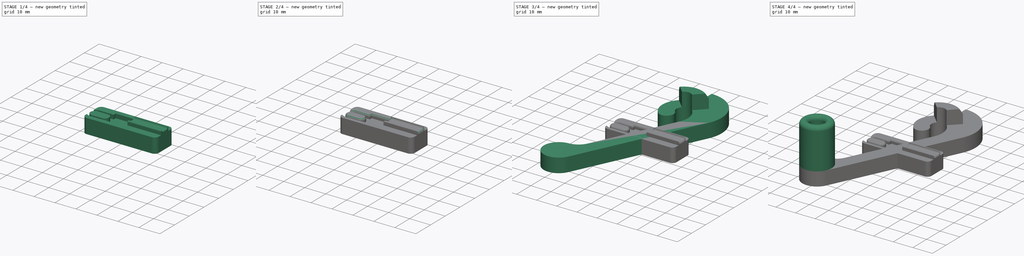
[diagram: build sequence overview — one tinted view per stage of 4, left to right]
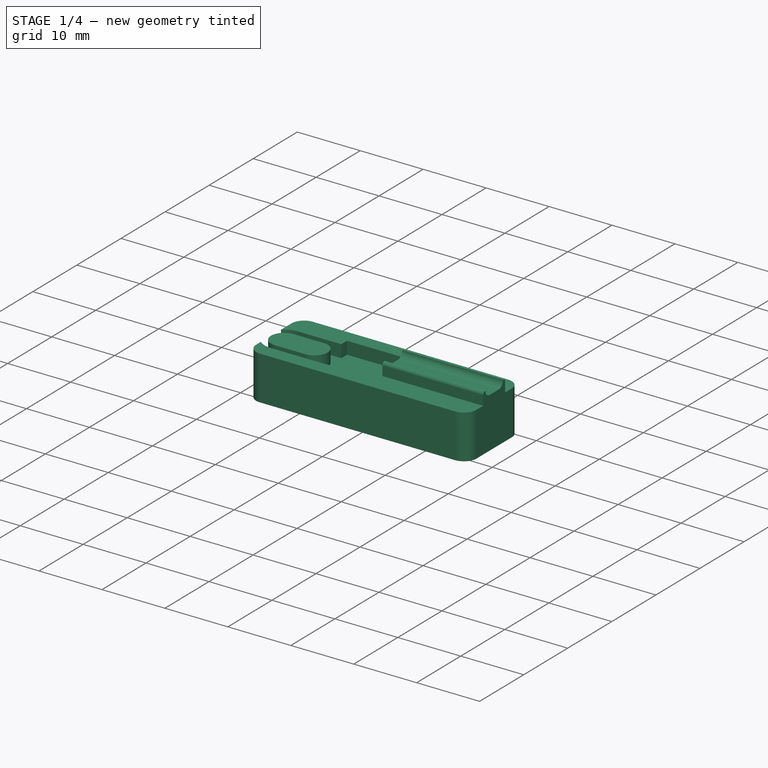
[diagram: stage 1 of 4 — iso view after this stage's code; geometry added in this stage tinted green]
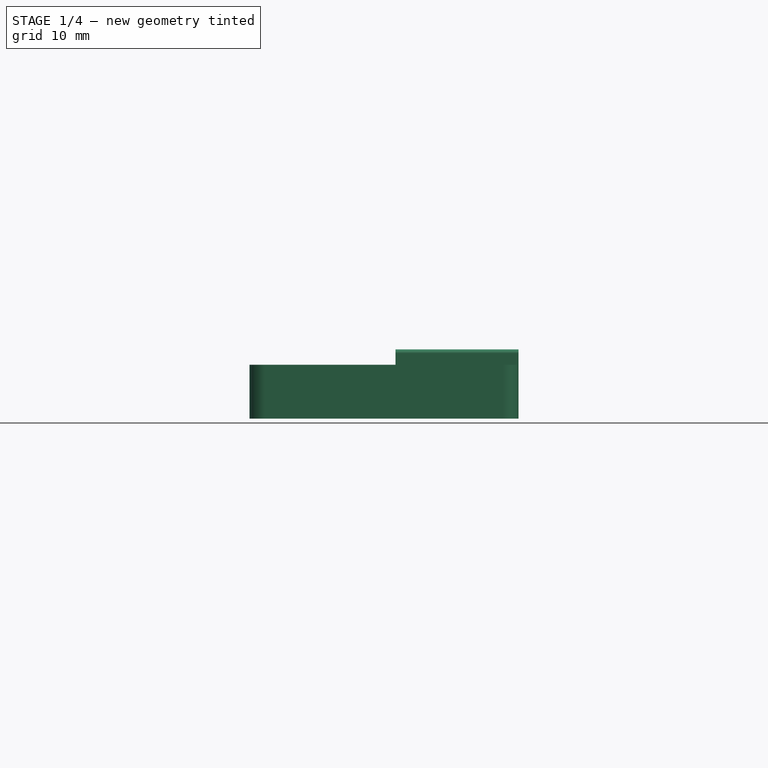
[diagram: stage 1 of 4 — front view after this stage's code; geometry added in this stage tinted green]
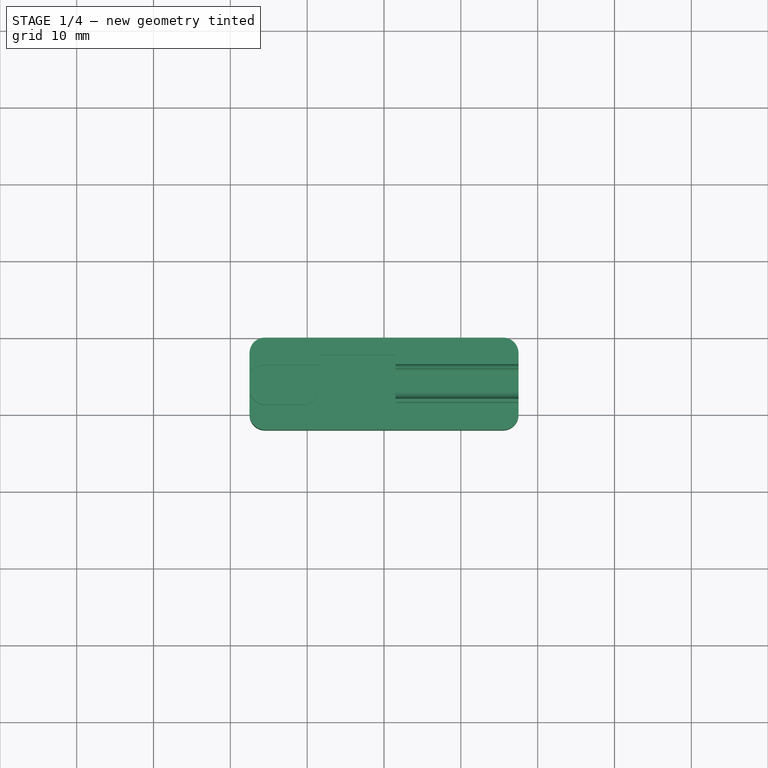
[diagram: stage 1 of 4 — top view after this stage's code; geometry added in this stage tinted green]
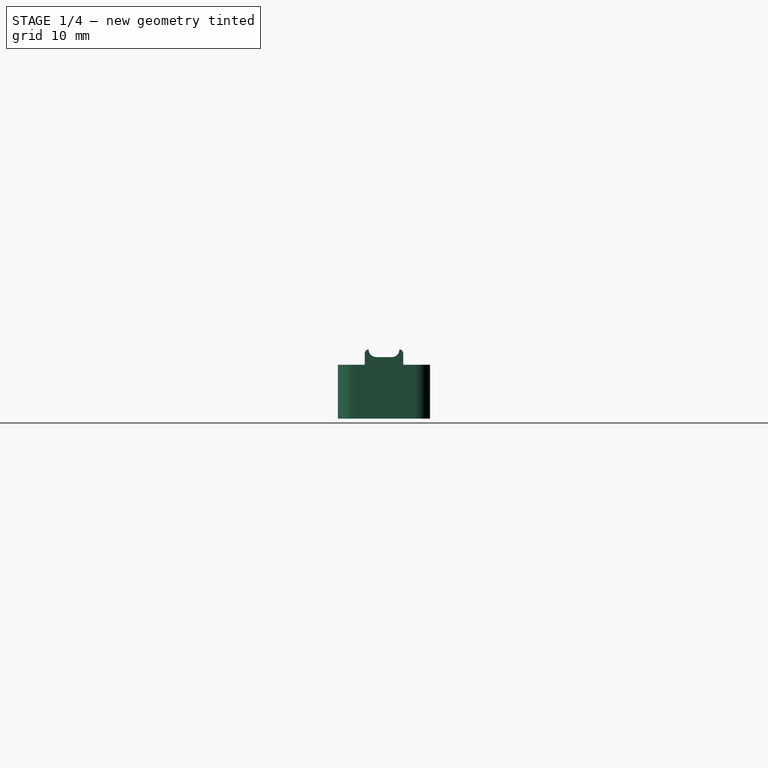
[diagram: stage 1 of 4 — right view after this stage's code; geometry added in this stage tinted green]
FCSTD DOCUMENT  (FreeCAD 0.18R16110 (Git))
Label: WireRackSpoolHangerR
License: All rights reserved
LicenseURL: http://en.wikipedia.org/wiki/All_rights_reserved
objects: Sketcher::SketchObject×7, PartDesign::Pad×5, PartDesign::Fillet×3, PartDesign::Pocket×2, PartDesign::Body×2, PartDesign::Revolution×1
note: 28 computed .brp shape members not serialized (recipe doc carries the construction recipe); baked Part::Feature solids carry a one-line shape summary decoded from their .brp

FEATURE [PartDesign::Body] Body
  Group = -> [Sketch,Pad,Revolution,Sketch001,Pad001,Sketch002,Pocket,Fillet]
  Origin = -> Origin
  Tip = -> Fillet
FEATURE [Sketcher::SketchObject] Sketch003
  MapMode = 5
  Support = -> [XY_Plane001]
  sketch-geometry (12):
    g0: Circle [constr] CenterX=0 CenterY=0 CenterZ=0 NormalX=0 NormalY=0 NormalZ=1 AngleXU=0 Radius=10.5
    g1: ArcOfCircle CenterX=-15.5 CenterY=-22 CenterZ=0 NormalX=0 NormalY=0 NormalZ=1 AngleXU=0 Radius=2 StartAngle=1.5708 EndAngle=3.14159
    g2: ArcOfCircle CenterX=15.5 CenterY=-22 CenterZ=0 NormalX=0 NormalY=0 NormalZ=1 AngleXU=0 Radius=2 StartAngle=0 EndAngle=1.5708
    g3: ArcOfCircle CenterX=15.5 CenterY=-30 CenterZ=0 NormalX=0 NormalY=0 NormalZ=1 AngleXU=0 Radius=2 StartAngle=4.71239 EndAngle=6.28319
    g4: ArcOfCircle CenterX=-15.5 CenterY=-30 CenterZ=0 NormalX=0 NormalY=0 NormalZ=1 AngleXU=0 Radius=2 StartAngle=3.14159 EndAngle=4.71239
    g5: LineSegment StartX=-17.5 StartY=-30 StartZ=0 EndX=-17.5 EndY=-22 EndZ=0
    g6: LineSegment StartX=-15.5 StartY=-20 StartZ=0 EndX=15.5 EndY=-20 EndZ=0
    g7: LineSegment StartX=-15.5 StartY=-32 StartZ=0 EndX=15.5 EndY=-32 EndZ=0
    g8: LineSegment StartX=17.5 StartY=-30 StartZ=0 EndX=17.5 EndY=-22 EndZ=0
    g9: Circle [constr] CenterX=0 CenterY=0 CenterZ=0 NormalX=0 NormalY=0 NormalZ=1 AngleXU=0 Radius=17.5
    g10: LineSegment [constr] StartX=0 StartY=10.5 StartZ=0 EndX=0 EndY=17.5 EndZ=0
    g11: GeomPoint X=0 Y=-20 Z=0
  constraints (29):
    c: Coincident(g0,g-1)
    c: Radius(g0) = 10.5
    c: Vertical(g8)
    c: Vertical(g5)
    c: Horizontal(g6)
    c: Horizontal(g7)
    c: Tangent(g7,g3) = -1.5708
    c: Tangent(g8,g3) = -1.5708
    c: Tangent(g8,g2) = -1.5708
    c: Tangent(g6,g2) = 1.5708
    c: Tangent(g5,g1) = 1.5708
    c: Tangent(g6,g1) = 1.5708
    c: Tangent(g5,g4) = 1.5708
    c: Tangent(g7,g4) = -1.5708
    c: Equal(g4,g1)
    c: Equal(g1,g2)
    c: Equal(g2,g3)
    c: DistanceY(g5,g5) = 8
    c: Radius(g4) = 2
    c: DistanceX(g4,g3) = 35
    c: Coincident(g9,g-1)
    c: PointOnObject(g10,g0)
    c: PointOnObject(g10,g9)
    c: Vertical(g10)
    c: PointOnObject(g10,g-2)
    c: DistanceY(g10,g10) = 7
    c: DistanceY(g1,g-1) = 20
    c: Symmetric(g1,g2,g11)
    c: DistanceX(g11,g-1) = 0
FEATURE [PartDesign::Pad] Pad002  label="ClipHolderBase"
  Length = 7
  Length2 = 100
  Profile = -> Sketch003
  Type = 0
FEATURE [Sketcher::SketchObject] Sketch004
  MapMode = 5
  Placement = pos=(0,0,7) rot=(0,0,1;0rad)
  Support = -> [Pad002]
  sketch-geometry (24):
    g0: GeomPoint X=0 Y=-26 Z=0
    g1: ArcOfCircle CenterX=-15.4 CenterY=-26.65 CenterZ=0 NormalX=0 NormalY=0 NormalZ=1 AngleXU=0 Radius=2.1 StartAngle=1.5708 EndAngle=4.71239
    g2: ArcOfCircle CenterX=-15.4 CenterY=-26.65 CenterZ=0 NormalX=0 NormalY=0 NormalZ=1 AngleXU=0 Radius=3.1 StartAngle=1.5708 EndAngle=4.71239
    g3: LineSegment [constr] StartX=-15.4 StartY=-26.65 StartZ=0 EndX=-18.5 EndY=-26.65 EndZ=0
    g4: GeomPoint X=-17.5 Y=-26.65 Z=0
    g5: LineSegment [constr] StartX=-15.4 StartY=-24.55 StartZ=0 EndX=-15.4 EndY=-28.75 EndZ=0
    g6: LineSegment StartX=-15.4 StartY=-23.55 StartZ=0 EndX=-8.5 EndY=-23.55 EndZ=0
    g7: LineSegment StartX=-15.4 StartY=-29.75 StartZ=0 EndX=1.5 EndY=-29.75 EndZ=0
    g8: LineSegment StartX=-15.4 StartY=-24.55 StartZ=0 EndX=-10.6 EndY=-24.55 EndZ=0
    g9: LineSegment StartX=-15.4 StartY=-28.75 StartZ=0 EndX=-10.6 EndY=-28.75 EndZ=0
    g10: LineSegment [constr] StartX=-10.6 StartY=-28.75 StartZ=0 EndX=-10.6 EndY=-24.55 EndZ=0
    g11: ArcOfCircle CenterX=-10.6 CenterY=-26.65 CenterZ=0 NormalX=0 NormalY=0 NormalZ=1 AngleXU=0 Radius=2.1 StartAngle=4.71239 EndAngle=7.85398
    g12: LineSegment StartX=-8.5 StartY=-23.55 StartZ=0 EndX=-8.5 EndY=-22.25 EndZ=0
    g13: LineSegment StartX=-8.5 StartY=-22.25 StartZ=0 EndX=1.5 EndY=-22.25 EndZ=0
    g14: GeomPoint X=-8.5 Y=-26 Z=0
    g15: GeomPoint X=-8.5 Y=-29.75 Z=0
    g16: LineSegment [constr] StartX=0 StartY=-26 StartZ=0 EndX=-8.5 EndY=-26 EndZ=0
    g17: GeomPoint X=-8.5 Y=-26.65 Z=0
    g18: LineSegment StartX=3.9 StartY=-23.55 StartZ=0 EndX=1.5 EndY=-23.55 EndZ=0
    g19: LineSegment StartX=3.9 StartY=-28.75 StartZ=0 EndX=1.5 EndY=-28.75 EndZ=0
    g20: ArcOfCircle CenterX=3.9 CenterY=-26.15 CenterZ=0 NormalX=0 NormalY=0 NormalZ=1 AngleXU=0 Radius=2.6 StartAngle=4.71239 EndAngle=7.85398
    g21: LineSegment [constr] StartX=3.9 StartY=-26.15 StartZ=0 EndX=6.5 EndY=-26.15 EndZ=0
    g22: LineSegment StartX=1.5 StartY=-22.25 StartZ=0 EndX=1.5 EndY=-23.55 EndZ=0
    g23: LineSegment StartX=1.5 StartY=-28.75 StartZ=0 EndX=1.5 EndY=-29.75 EndZ=0
  constraints (66):
    c: PointOnObject(g0,g-2)
    c: DistanceY(g0,g-1) = 26
    c: Coincident(g2,g1)
    c: Coincident(g3,g1)
    c: PointOnObject(g3,g2)
    c: Horizontal(g3)
    c: PointOnObject(g4,g1)
    c: PointOnObject(g4,g3)
    c: Coincident(g5,g1)
    c: Coincident(g5,g1)
    c: Vertical(g5)
    c: PointOnObject(g1,g5)
    c: PointOnObject(g2,g5)
    c: PointOnObject(g2,g5)
    c: Radius(g2) = 3.1
    c: Radius(g1) = 2.1
    c: DistanceX(g4,g0) = 17.5
    c: Coincident(g6,g2)
    c: Horizontal(g6)
    c: Coincident(g7,g2)
    c: Horizontal(g7)
    c: Coincident(g8,g1)
    c: Horizontal(g8)
    c: Coincident(g9,g1)
    c: Horizontal(g9)
    c: Coincident(g10,g9)
    c: Coincident(g10,g8)
    c: Vertical(g10)
    c: PointOnObject(g11,g10)
    c: Coincident(g11,g8)
    c: Coincident(g11,g9)
    c: Coincident(g12,g6)
    c: Coincident(g13,g12)
    c: Horizontal(g13)
    c: Vertical(g12)
    c: DistanceX(g3,g12) = 10
    c: DistanceY(g2,g12) = 7.5
    c: PointOnObject(g15,g7)
    c: PointOnObject(g15,g12)
    c: Symmetric(g15,g12,g14)
    c: Coincident(g16,g0)
    c: Coincident(g16,g14)
    c: Horizontal(g16)
    c: PointOnObject(g17,g11)
    c: PointOnObject(g17,g3)
    c: PointOnObject(g17,g12)
    c: Horizontal(g18)
    c: Horizontal(g19)
    c: Tangent(g20,g19) = 1.5708
    c: Tangent(g20,g18) = -1.5708
    c: Coincident(g21,g20)
    c: PointOnObject(g21,g20)
    c: Horizontal(g21)
    c: DistanceX(g3,g21) = 25
    c: PointOnObject(g19,g9)
    c: PointOnObject(g18,g6)
    c: DistanceX(g18,g21) = 5
    c: Coincident(g22,g13)
    c: Coincident(g22,g18)
    c: Coincident(g23,g19)
    c: Vertical(g23)
    c: Vertical(g22)
    c: Coincident(g23,g7)
    c: PointOnObject(g18,g23)
    c: DistanceX(g0,g21) = 6.5
    c: DistanceX(g0,g18) = 1.5
FEATURE [Sketcher::SketchObject] Sketch005
  MapMode = 5
  Placement = pos=(17.5,0,0) rot=(0.57735,0.57735,0.57735;2.0944rad)
  Support = -> [Pad002]
  sketch-geometry (12):
    g0: ArcOfCircle CenterX=-25 CenterY=9 CenterZ=0 NormalX=0 NormalY=0 NormalZ=1 AngleXU=0 Radius=1 StartAngle=4.71239 EndAngle=6.28319
    g1: ArcOfCircle CenterX=-27 CenterY=9 CenterZ=0 NormalX=0 NormalY=0 NormalZ=1 AngleXU=0 Radius=1 StartAngle=3.14159 EndAngle=4.71239
    g2: LineSegment StartX=-27 StartY=8 StartZ=0 EndX=-25 EndY=8 EndZ=0
    g3: ArcOfCircle CenterX=-28 CenterY=8.5 CenterZ=0 NormalX=0 NormalY=0 NormalZ=1 AngleXU=0 Radius=0.5 StartAngle=1.5708 EndAngle=3.14159
    g4: ArcOfCircle CenterX=-24 CenterY=8.5 CenterZ=0 NormalX=0 NormalY=0 NormalZ=1 AngleXU=0 Radius=0.5 StartAngle=-9e-16 EndAngle=1.5708
    g5: LineSegment StartX=-28.5 StartY=8.5 StartZ=0 EndX=-28.5 EndY=7 EndZ=0
    g6: LineSegment StartX=-23.5 StartY=8.5 StartZ=0 EndX=-23.5 EndY=7 EndZ=0
    g7: LineSegment StartX=-28.5 StartY=7 StartZ=0 EndX=-23.5 EndY=7 EndZ=0
    g8: LineSegment [constr] StartX=-27 StartY=9 StartZ=0 EndX=-28 EndY=9 EndZ=0
    g9: GeomPoint X=-26 Y=7 Z=0
    g10: LineSegment [constr] StartX=-28 StartY=8.5 StartZ=0 EndX=-28 EndY=9 EndZ=0
    g11: LineSegment [constr] StartX=-24 StartY=8.5 StartZ=0 EndX=-24 EndY=9 EndZ=0
  constraints (32):
    c: Horizontal(g2)
    c: Coincident(g3,g1)
    c: Coincident(g4,g0)
    c: Tangent(g2,g1) = -1.5708
    c: Tangent(g0,g2) = -1.5708
    c: Vertical(g5)
    c: Vertical(g6)
    c: Coincident(g7,g5)
    c: Coincident(g7,g6)
    c: Horizontal(g7)
    c: Radius(g0) = 1
    c: Tangent(g5,g3) = -1.5708
    c: Tangent(g6,g4) = 1.5708
    c: DistanceY(g-1,g6) = 7
    c: Coincident(g8,g1)
    c: Coincident(g8,g1)
    c: Horizontal(g8)
    c: PointOnObject(g0,g8)
    c: Symmetric(g5,g6,g9)
    c: DistanceX(g9,g-1) = 26
    c: DistanceX(g7,g7) = 5
    c: Coincident(g10,g3)
    c: Coincident(g10,g1)
    c: Vertical(g10)
    c: Coincident(g11,g4)
    c: Coincident(g11,g0)
    c: Vertical(g11)
    c: DistanceX(g1,g0) = 4
    c: Equal(g1,g0)
    c: Equal(g3,g4)
    c: Radius(g4) = 0.5
    c: DistanceY(g6,g0) = 1
FEATURE [PartDesign::Pad] Pad003  label="WireChannel"
  BaseFeature = -> Pad002
  Length = 16
  Length2 = 100
  Profile = -> Sketch005
  Reversed = true
  Type = 0
FEATURE [PartDesign::Pocket] Pocket001  label="ClipCutout"
  BaseFeature = -> Pad003
  Length = 2
  Length2 = 100
  Profile = -> Sketch004
  Type = 0
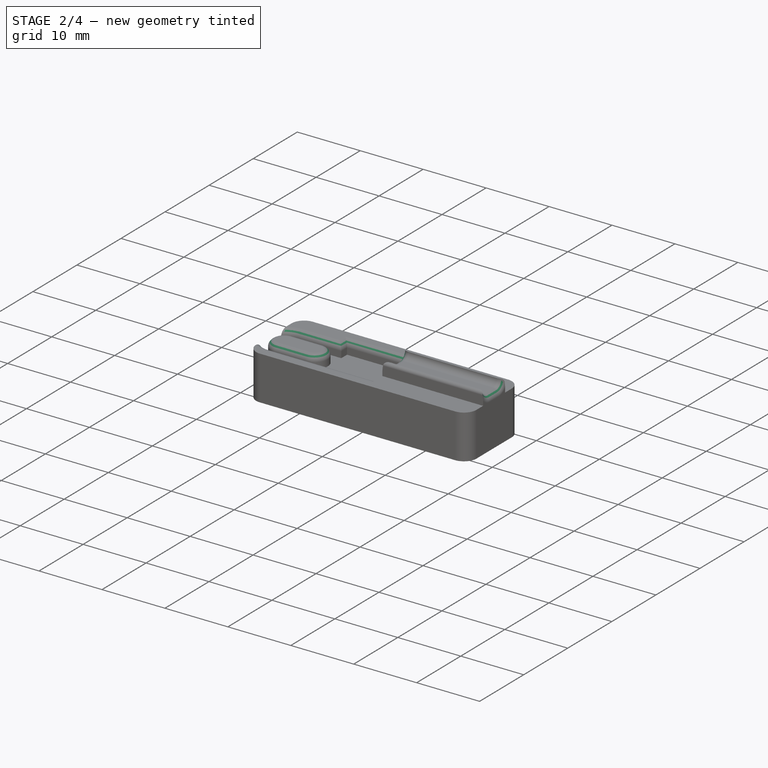
[diagram: stage 2 of 4 — iso view after this stage's code; geometry added in this stage tinted green]
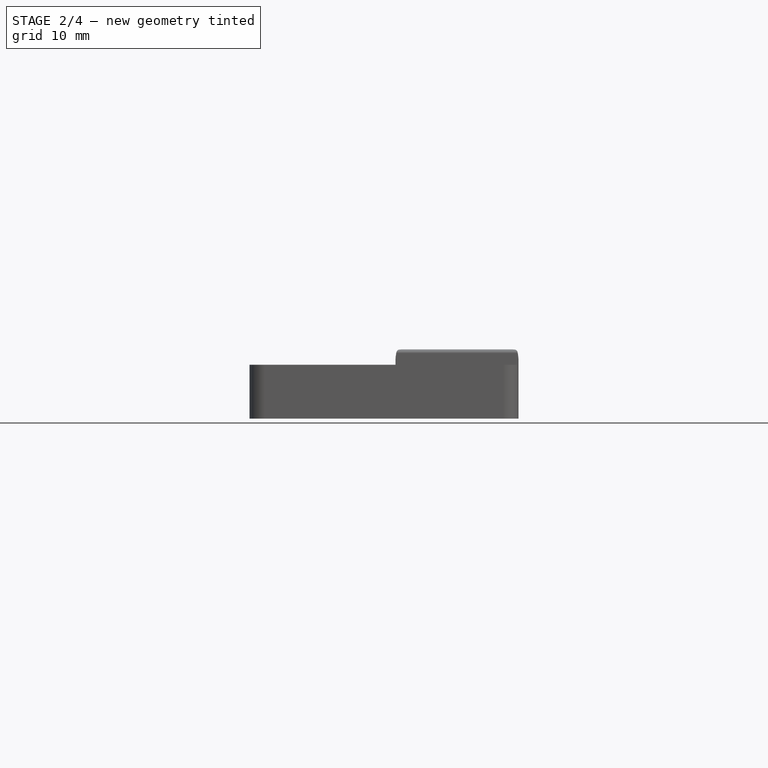
[diagram: stage 2 of 4 — front view after this stage's code; geometry added in this stage tinted green]
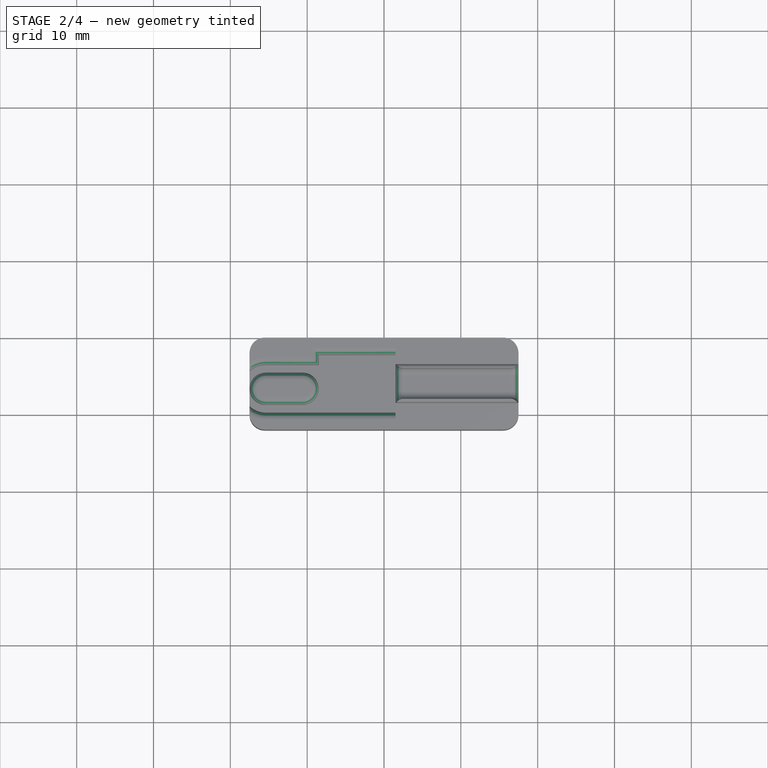
[diagram: stage 2 of 4 — top view after this stage's code; geometry added in this stage tinted green]
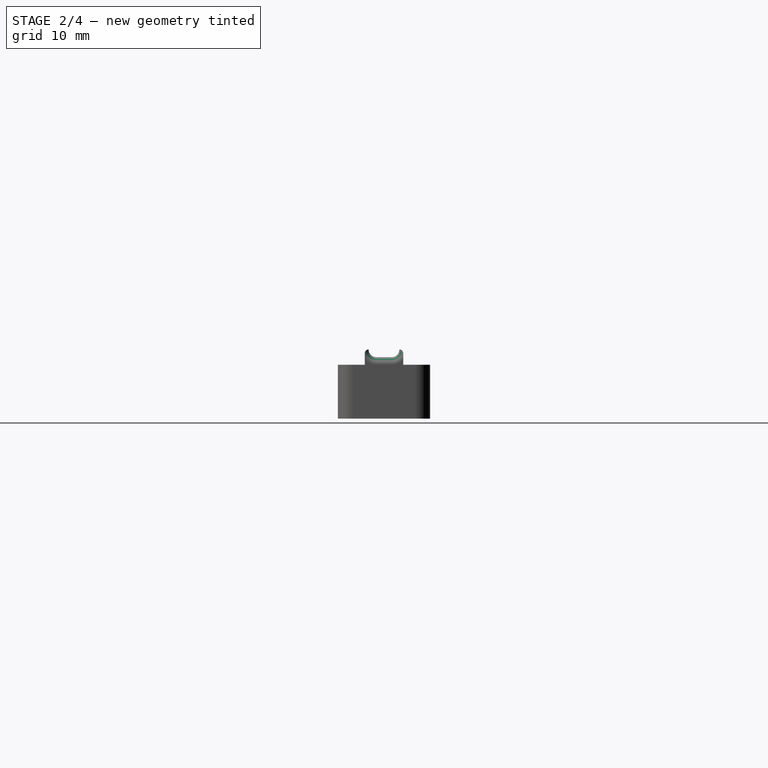
[diagram: stage 2 of 4 — right view after this stage's code; geometry added in this stage tinted green]
FEATURE [Sketcher::SketchObject] Sketch006
  MapMode = 5
  Placement = pos=(0,0,7) rot=(0,0,1;0rad)
  Support = -> [Pocket001]
  sketch-geometry (4):
    g0: LineSegment StartX=11.5 StartY=-21 StartZ=0 EndX=1.5 EndY=-21 EndZ=0
    g1: LineSegment StartX=1.5 StartY=-21 StartZ=0 EndX=1.5 EndY=-31 EndZ=0
    g2: LineSegment StartX=1.5 StartY=-31 StartZ=0 EndX=11.5 EndY=-31 EndZ=0
    g3: LineSegment StartX=11.5 StartY=-31 StartZ=0 EndX=11.5 EndY=-21 EndZ=0
  constraints (12):
    c: Coincident(g0,g1)
    c: Coincident(g1,g2)
    c: Coincident(g2,g3)
    c: Coincident(g3,g0)
    c: Horizontal(g0)
    c: Horizontal(g2)
    c: Vertical(g1)
    c: Vertical(g3)
    c: DistanceX(g-1,g0) = 1.5
    c: DistanceX(g0,g0) = 10
    c: DistanceY(g0,g-1) = 21
    c: DistanceY(g1,g1) = 10
FEATURE [PartDesign::Pad] Pad004
  BaseFeature = -> Pocket001
  Length = 1
  Length2 = 100
  Profile = -> Sketch006
  Reversed = true
  Type = 0
FEATURE [PartDesign::Fillet] Fillet001
  Base = -> Pad004 [Edge110,Edge111,Edge109,Edge104,Edge103,Edge102,Edge116]
  BaseFeature = -> Pad004
  Radius = 0.99
FEATURE [PartDesign::Fillet] Fillet002
  Base = -> Fillet001 [Edge35,Edge33,Edge32,Edge93,Face53]
  BaseFeature = -> Fillet001
  Radius = 1
FEATURE [PartDesign::Body] Body001
  Group = -> [Sketch003,Pad002,Sketch004,Sketch005,Pad003,Pocket001,Sketch006,Pad004,Fillet001,Fillet002]
  Origin = -> Origin001
  Tip = -> Fillet002
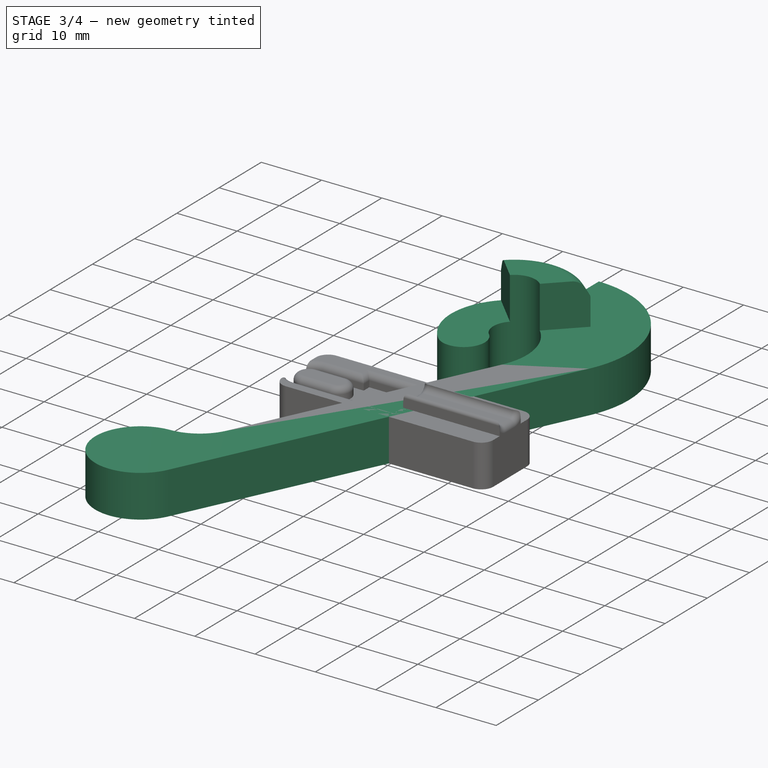
[diagram: stage 3 of 4 — iso view after this stage's code; geometry added in this stage tinted green]
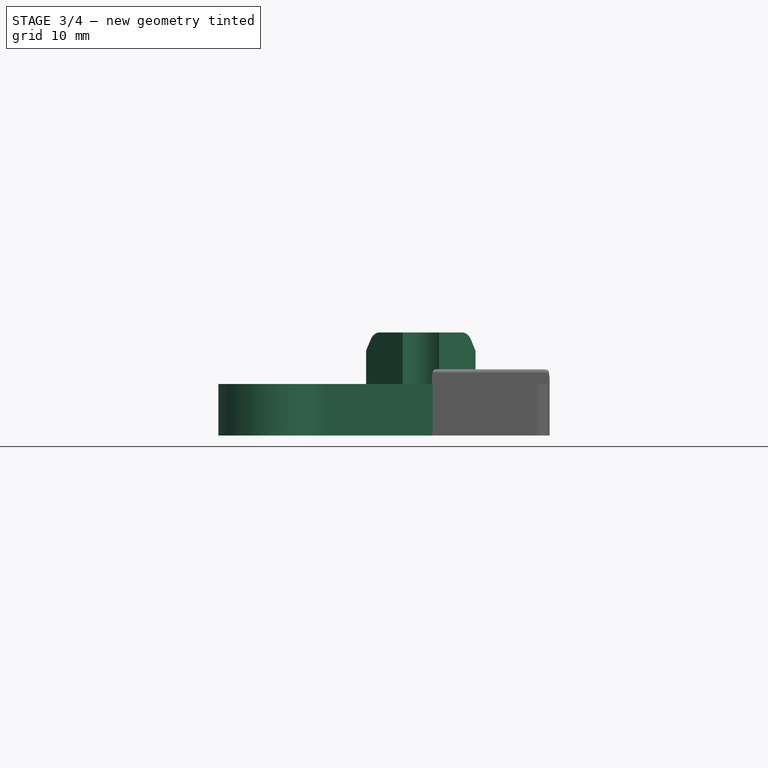
[diagram: stage 3 of 4 — front view after this stage's code; geometry added in this stage tinted green]
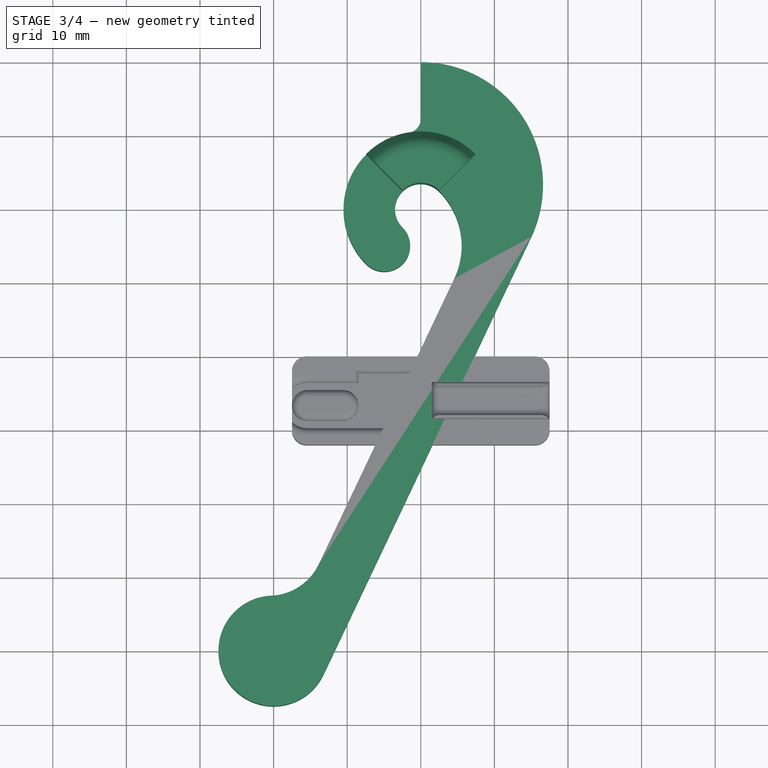
[diagram: stage 3 of 4 — top view after this stage's code; geometry added in this stage tinted green]
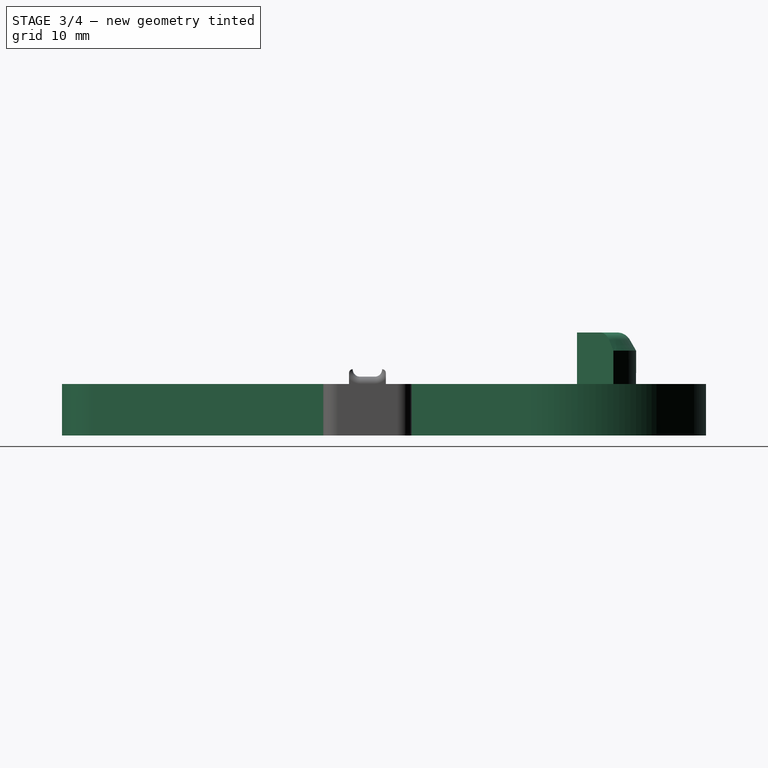
[diagram: stage 3 of 4 — right view after this stage's code; geometry added in this stage tinted green]
FEATURE [Sketcher::SketchObject] Sketch
  MapMode = 5
  Support = -> [XY_Plane]
  sketch-geometry (16):
    g0: ArcOfCircle CenterX=0 CenterY=0 CenterZ=0 NormalX=0 NormalY=0 NormalZ=1 AngleXU=0 Radius=3.5 StartAngle=0.785398 EndAngle=3.92699
    g1: LineSegment [constr] StartX=-2.47487 StartY=-2.47487 StartZ=0 EndX=2.47487 EndY=2.47487 EndZ=0
    g2: ArcOfCircle CenterX=-20 CenterY=-60 CenterZ=0 NormalX=0 NormalY=0 NormalZ=1 AngleXU=0 Radius=7.5 StartAngle=1.61331 EndAngle=5.84018
    g3: LineSegment [constr] StartX=-13.224 StartY=-63.2149 StartZ=0 EndX=-26.776 EndY=-56.7851 EndZ=0
    g4: ArcOfCircle CenterX=-4.94975 CenterY=-4.94975 CenterZ=0 NormalX=0 NormalY=0 NormalZ=1 AngleXU=0 Radius=3.5 StartAngle=3.92699 EndAngle=7.06858
    g5: LineSegment [constr] StartX=0 StartY=0 StartZ=0 EndX=-3.5 EndY=0 EndZ=0
    g6: ArcOfCircle CenterX=-4.94975 CenterY=-4.94975 CenterZ=0 NormalX=0 NormalY=0 NormalZ=1 AngleXU=0 Radius=10.5 StartAngle=5.84018 EndAngle=7.06858
    g7: LineSegment StartX=5.1e-15 StartY=12.339 StartZ=0 EndX=5.1e-15 EndY=20 EndZ=0
    g8: ArcOfCircle CenterX=0 CenterY=3.39496 CenterZ=0 NormalX=0 NormalY=0 NormalZ=1 AngleXU=0 Radius=16.605 StartAngle=5.84018 EndAngle=7.85398
    g9: LineSegment [constr] StartX=0 StartY=0 StartZ=0 EndX=-2.47487 EndY=2.47487 EndZ=0
    g10: LineSegment StartX=-13.224 StartY=-63.2149 StartZ=0 EndX=15.0021 EndY=-3.72283 EndZ=0
    g11: LineSegment [constr] StartX=4.53668 StartY=-9.4506 StartZ=0 EndX=10.861 EndY=-12.4512 EndZ=0
    g12: LineSegment StartX=4.53668 StartY=-9.4506 StartZ=0 EndX=-13.8615 EndY=-48.2285 EndZ=0
    g13: ArcOfCircle CenterX=-20.6376 CenterY=-45.0136 CenterZ=0 NormalX=0 NormalY=0 NormalZ=1 AngleXU=0 Radius=7.5 StartAngle=4.75491 EndAngle=5.84018
    g14: ArcOfCircle CenterX=0 CenterY=0 CenterZ=0 NormalX=0 NormalY=0 NormalZ=1 AngleXU=0 Radius=10.5 StartAngle=1.73149 EndAngle=3.92699
    g15: ArcOfCircle CenterX=-2 CenterY=12.339 CenterZ=0 NormalX=0 NormalY=0 NormalZ=1 AngleXU=0 Radius=2 StartAngle=4.87308 EndAngle=6.28319
  constraints (46):
    c: Coincident(g0,g-1)
    c: PointOnObject(g0,g1)
    c: DistanceX(g2,g0) = 20
    c: DistanceY(g2,g0) = 60
    c: Coincident(g3,g2)
    c: PointOnObject(g2,g3)
    c: Coincident(g5,g0)
    c: PointOnObject(g5,g0)
    c: Horizontal(g5)
    c: Coincident(g1,g0)
    c: Coincident(g1,g0)
    c: Angle(g-1,g1) = 0.785398
    c: Coincident(g6,g4)
    c: PointOnObject(g7,g-2)
    c: DistanceY(g0,g7) = 20
    c: Coincident(g9,g0)
    c: PointOnObject(g9,g0)
    c: Perpendicular(g1,g9)
    c: Distance(g3) = 15
    c: Distance(g1) = 7
    c: Coincident(g6,g0)
    c: Coincident(g4,g0)
    c: PointOnObject(g4,g1)
    c: Distance(g4,g0) = 7
    c: Tangent(g10,g8) = -1.5708
    c: Tangent(g10,g2) = -1.5708
    c: PointOnObject(g11,g10)
    c: Perpendicular(g6,g11)
    c: Perpendicular(g10,g11)
    c: Distance(g11) = 7
    c: Coincident(g6,g11)
    c: Coincident(g12,g6)
    c: Parallel(g12,g10)
    c: PointOnObject(g3,g2)
    c: Tangent(g13,g2) = 1.5708
    c: Tangent(g13,g12) = 1.5708
    c: Equal(g13,g2)
    c: Coincident(g14,g0)
    c: Coincident(g14,g4)
    c: Vertical(g7)
    c: Tangent(g7,g15) = -1.5708
    c: Tangent(g14,g15) = 1.5708
    c: Radius(g15) = 2
    c: PointOnObject(g4,g1)
    c: Coincident(g7,g8)
    c: PointOnObject(g8,g7)
FEATURE [PartDesign::Pad] Pad
  Length = 7
  Length2 = 100
  Profile = -> Sketch
  Type = 0
FEATURE [Sketcher::SketchObject] Sketch001
  MapMode = 5
  Support = -> [XY_Plane]
  sketch-geometry (2):
    g0: Circle CenterX=-20 CenterY=-60 CenterZ=0 NormalX=0 NormalY=0 NormalZ=1 AngleXU=0 Radius=7.5
    g1: Circle CenterX=-20 CenterY=-60 CenterZ=0 NormalX=0 NormalY=0 NormalZ=1 AngleXU=0 Radius=3.5
  constraints (5):
    c: DistanceX(g0,g-1) = 20
    c: DistanceY(g0,g-1) = 60
    c: Radius(g0) = 7.5
    c: Coincident(g1,g0)
    c: Radius(g1) = 3.5
FEATURE [Sketcher::SketchObject] Sketch002
  MapMode = 5
  Placement = pos=(0,0,0) rot=(0.57735,0.57735,0.57735;2.0944rad)
  Support = -> [YZ_Plane]
  sketch-geometry (8):
    g0: LineSegment StartX=3.5 StartY=0 StartZ=0 EndX=3.5 EndY=14 EndZ=0
    g1: LineSegment StartX=10.5 StartY=0 StartZ=0 EndX=10.5 EndY=11.5359 EndZ=0
    g2: LineSegment StartX=9.6547 StartY=13 StartZ=0 EndX=10.5 EndY=11.5359 EndZ=0
    g3: LineSegment StartX=3.5 StartY=14 StartZ=0 EndX=7.92265 EndY=14 EndZ=0
    g4: ArcOfCircle CenterX=7.92265 CenterY=12 CenterZ=0 NormalX=0 NormalY=0 NormalZ=1 AngleXU=0 Radius=2 StartAngle=0.523599 EndAngle=1.5708
    g5: LineSegment StartX=10.5 StartY=0 StartZ=0 EndX=3.5 EndY=0 EndZ=0
    g6: GeomPoint X=8.5 Y=15 Z=0
    g7: GeomPoint X=10.5 Y=7 Z=0
  constraints (22):
    c: Vertical(g1)
    c: Coincident(g2,g1)
    c: Angle(g2,g1) = 2.61799
    c: DistanceY(g0,g0) = 14
    c: Coincident(g3,g0)
    c: Horizontal(g3)
    c: Tangent(g4,g3) = 1.5708
    c: Tangent(g4,g2) = 1.5708
    c: Radius(g4) = 2
    c: Coincident(g5,g1)
    c: Coincident(g5,g0)
    c: Horizontal(g5)
    c: DistanceY(g-1,g0) = 0
    c: DistanceX(g-1,g1) = 10.5
    c: DistanceX(g-1,g0) = 3.5
    c: Vertical(g0)
    c: PointOnObject(g6,g2)
    c: DistanceY(g-1,g6) = 15
    c: PointOnObject(g7,g1)
    c: DistanceY(g1,g7) = 7
    c: DistanceY(g7,g0) = 7
    c: DistanceX(g0,g6) = 5
FEATURE [PartDesign::Revolution] Revolution
  Angle = 90
  Axis = (-2e-16,3e-16,1)
  Base = (0,0,0)
  BaseFeature = -> Pad
  Midplane = true
  Profile = -> Sketch002
  ReferenceAxis = -> Sketch002 [V_Axis]
  Reversed = true
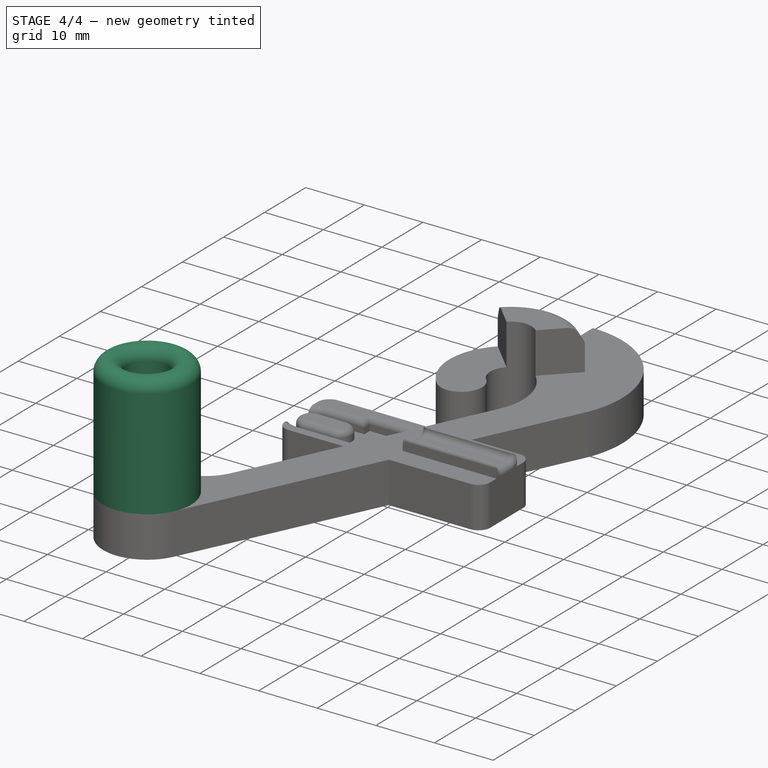
[diagram: stage 4 of 4 — iso view after this stage's code; geometry added in this stage tinted green]
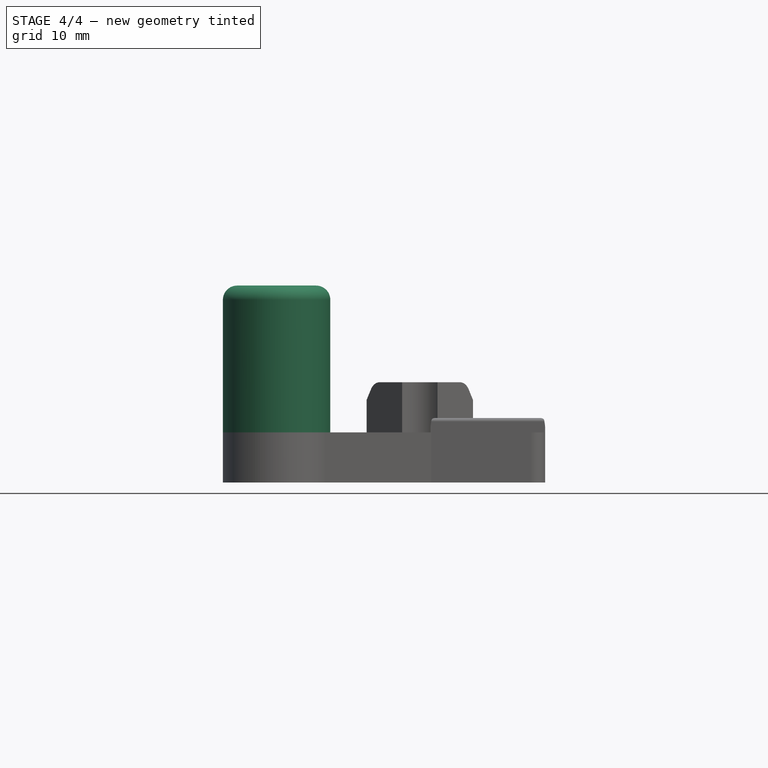
[diagram: stage 4 of 4 — front view after this stage's code; geometry added in this stage tinted green]
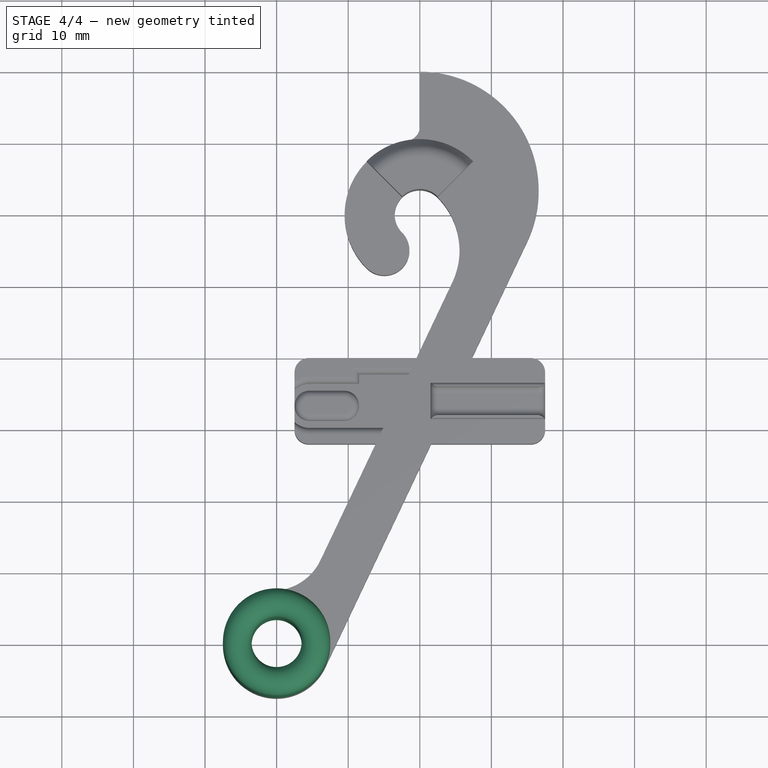
[diagram: stage 4 of 4 — top view after this stage's code; geometry added in this stage tinted green]
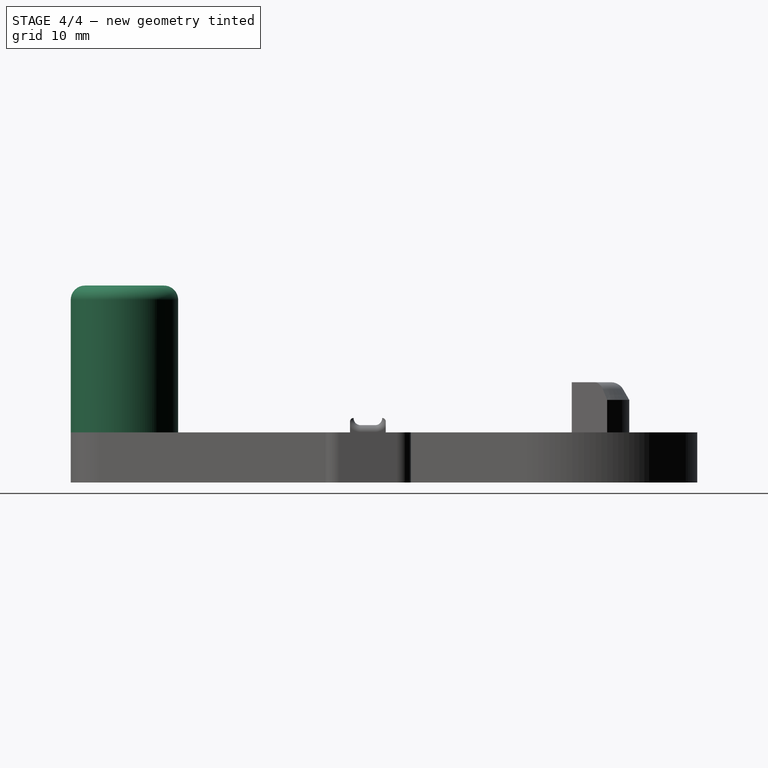
[diagram: stage 4 of 4 — right view after this stage's code; geometry added in this stage tinted green]
FEATURE [PartDesign::Pad] Pad001
  BaseFeature = -> Revolution
  Length = 27.5
  Length2 = 100
  Profile = -> Sketch001
  Type = 0
FEATURE [PartDesign::Pocket] Pocket
  BaseFeature = -> Pad001
  Length = 5
  Length2 = 100
  Profile = -> Pad001 [Face31]
  Type = 1
FEATURE [PartDesign::Fillet] Fillet
  Base = -> Pocket [Edge68,Edge47]
  BaseFeature = -> Pocket
  Radius = 1.99
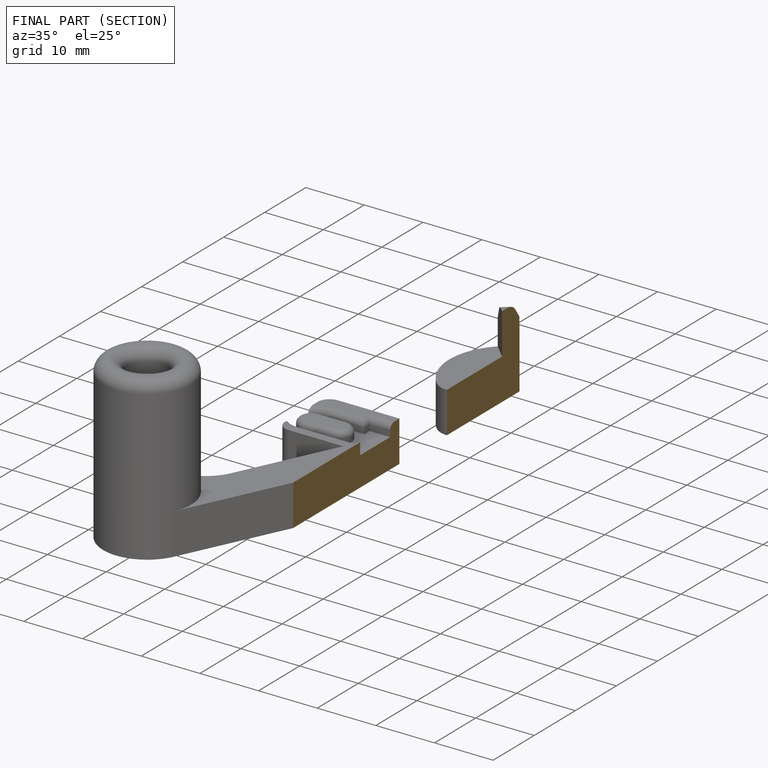
[diagram: finished part — half-section view (interior)]
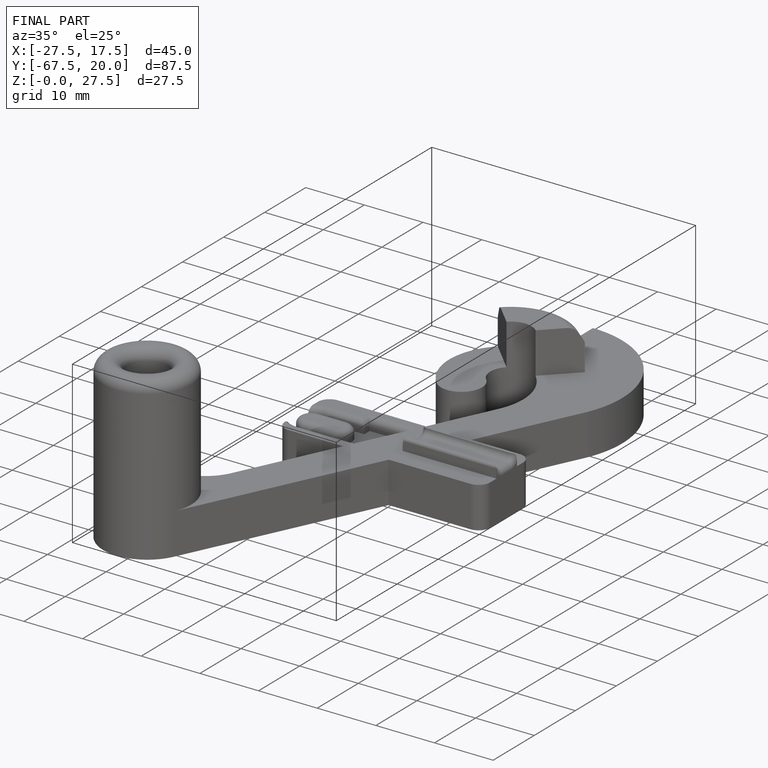
[diagram: finished part — iso view with bounding-box wireframe]
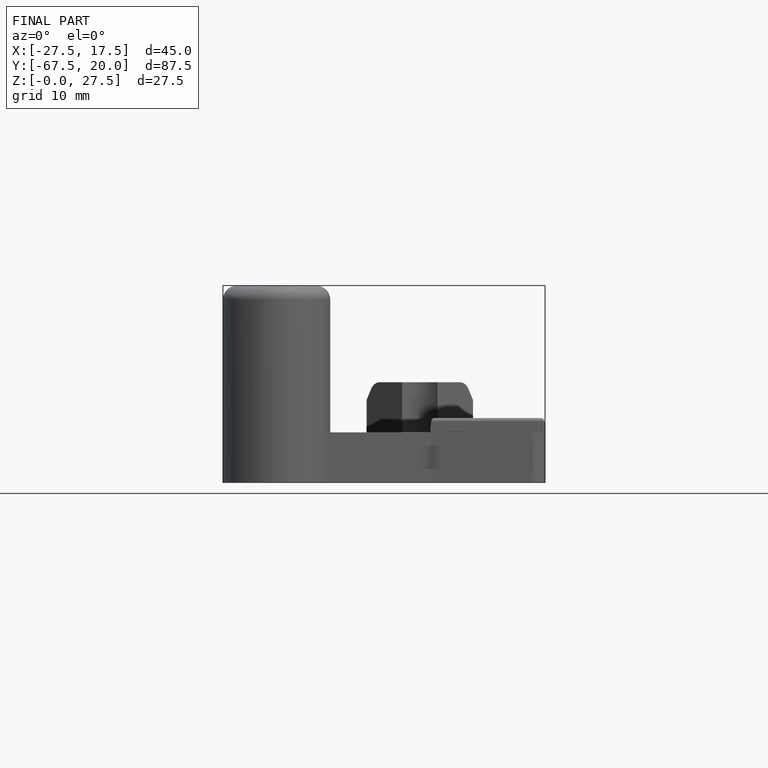
[diagram: finished part — front view with bounding-box wireframe]
